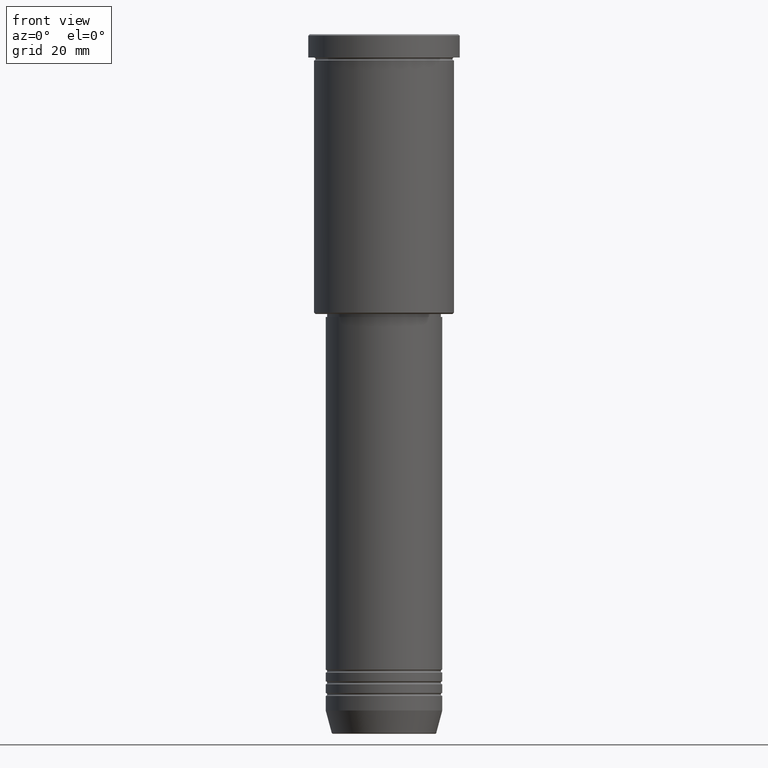
[diagram: clean part render]
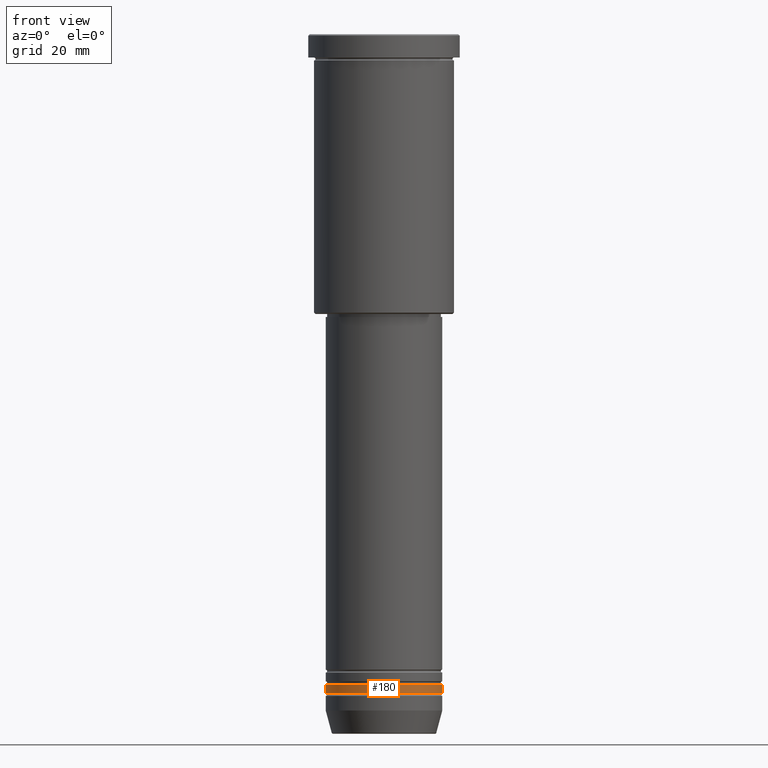
[diagram: same view with one face highlighted and labeled with its STEP entity id]
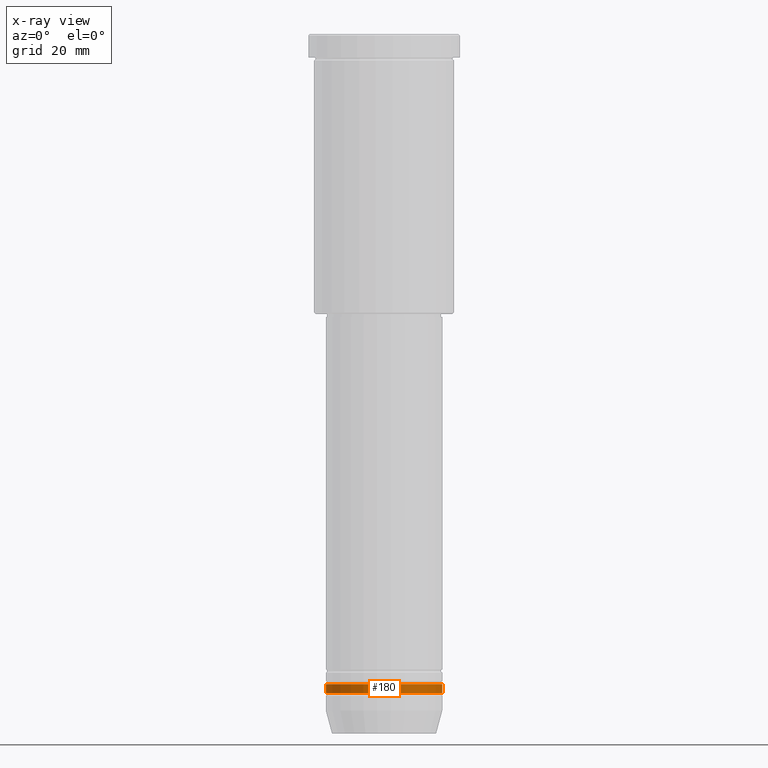
[diagram: x-ray of the same camera — body ghosted, the highlighted face saturated]
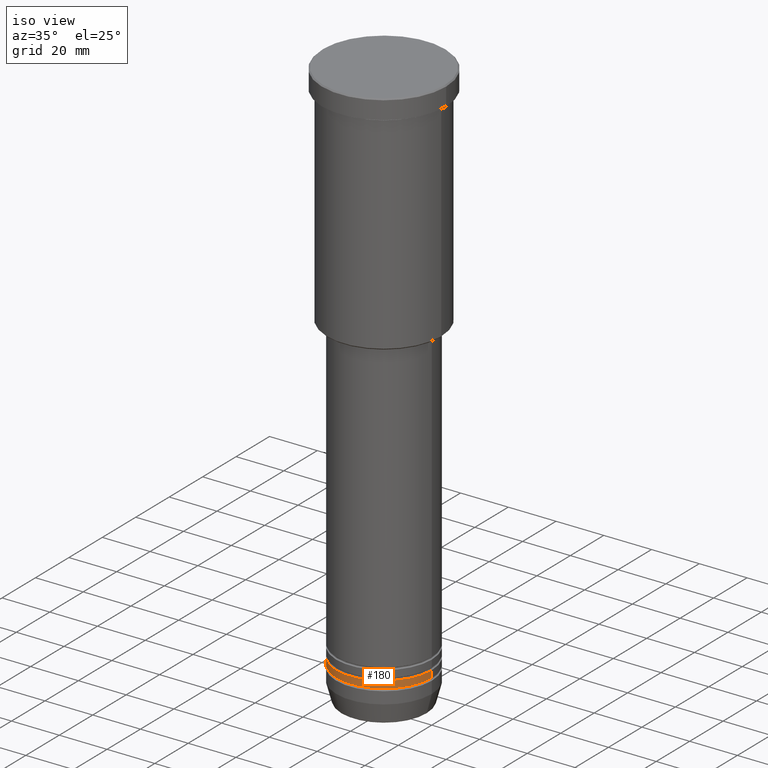
[diagram: same view with one face highlighted and labeled with its STEP entity id]
A machine part, front view. The second image highlights one B-rep face of the part: STEP entity #180.
The next image is the same camera in x-ray: the body ghosted, the highlighted face saturated — about 0% of this face is hidden behind the body in this view.
A second angle (iso view) of the same face is appended — the face is thin or edge-on in the first view.
In plain terms, the highlighted cylindrical surface (partial cylindrical patch) has radius 20 mm, axis along (-0, -0, 1).
Its self-contained STEP definition (entity closure, byte-faithful):
#37 = DIRECTION ( 'NONE',  ( -0.000000000000000000, -0.000000000000000000, 1.000000000000000000 ) ) ;
#58 = CARTESIAN_POINT ( 'NONE',  ( -20.00000000000000355, 2.449293598294706907E-15, -225.9999999999999716 ) ) ;
#59 = EDGE_CURVE ( 'NONE', #821, #355, #419, .T. ) ;
#133 = EDGE_CURVE ( 'NONE', #225, #821, #1123, .T. ) ;
#180 = ADVANCED_FACE ( 'NONE', ( #1034 ), #229, .T. ) ;
#187 = DIRECTION ( 'NONE',  ( -0.000000000000000000, -0.000000000000000000, 1.000000000000000000 ) ) ;
#225 = VERTEX_POINT ( 'NONE', #58 ) ;
#229 = CYLINDRICAL_SURFACE ( 'NONE', #487, 20.00000000000000355 ) ;
#232 = VECTOR ( 'NONE', #1155, 1000.000000000000000 ) ;
#251 = ORIENTED_EDGE ( 'NONE', *, *, #59, .F. ) ;
#314 = ORIENTED_EDGE ( 'NONE', *, *, #133, .F. ) ;
#325 = ORIENTED_EDGE ( 'NONE', *, *, #573, .T. ) ;
#331 = DIRECTION ( 'NONE',  ( 1.000000000000000000, 0.000000000000000000, 0.000000000000000000 ) ) ;
#355 = VERTEX_POINT ( 'NONE', #700 ) ;
#392 = ORIENTED_EDGE ( 'NONE', *, *, #1015, .T. ) ;
#419 = CIRCLE ( 'NONE', #705, 20.00000000000000000 ) ;
#432 = DIRECTION ( 'NONE',  ( -0.000000000000000000, -0.000000000000000000, 1.000000000000000000 ) ) ;
#455 = VECTOR ( 'NONE', #1114, 1000.000000000000000 ) ;
#476 = DIRECTION ( 'NONE',  ( 1.000000000000000000, 0.000000000000000000, 0.000000000000000000 ) ) ;
#487 = AXIS2_PLACEMENT_3D ( 'NONE', #859, #37, #783 ) ;
#499 = VERTEX_POINT ( 'NONE', #920 ) ;
#563 = CARTESIAN_POINT ( 'NONE',  ( 0.000000000000000000, 0.000000000000000000, -225.9999999999999716 ) ) ;
#567 = AXIS2_PLACEMENT_3D ( 'NONE', #563, #187, #476 ) ;
#573 = EDGE_CURVE ( 'NONE', #499, #355, #682, .T. ) ;
#679 = CARTESIAN_POINT ( 'NONE',  ( 0.000000000000000000, 0.000000000000000000, -223.0000000000000000 ) ) ;
#682 = LINE ( 'NONE', #760, #232 ) ;
#700 = CARTESIAN_POINT ( 'NONE',  ( 20.00000000000000000, 0.000000000000000000, -223.0000000000000000 ) ) ;
#705 = AXIS2_PLACEMENT_3D ( 'NONE', #679, #432, #331 ) ;
#750 = CARTESIAN_POINT ( 'NONE',  ( -20.00000000000000355, 2.449293598294706907E-15, 0.000000000000000000 ) ) ;
#760 = CARTESIAN_POINT ( 'NONE',  ( 20.00000000000000355, 0.000000000000000000, 0.000000000000000000 ) ) ;
#783 = DIRECTION ( 'NONE',  ( 1.000000000000000000, 0.000000000000000000, 0.000000000000000000 ) ) ;
#821 = VERTEX_POINT ( 'NONE', #1031 ) ;
#859 = CARTESIAN_POINT ( 'NONE',  ( 0.000000000000000000, 0.000000000000000000, 0.000000000000000000 ) ) ;
#920 = CARTESIAN_POINT ( 'NONE',  ( 20.00000000000000355, 0.000000000000000000, -225.9999999999999716 ) ) ;
#933 = CIRCLE ( 'NONE', #567, 20.00000000000000355 ) ;
#1010 = EDGE_LOOP ( 'NONE', ( #314, #392, #325, #251 ) ) ;
#1015 = EDGE_CURVE ( 'NONE', #225, #499, #933, .T. ) ;
#1031 = CARTESIAN_POINT ( 'NONE',  ( -20.00000000000000000, 2.449293598294706513E-15, -223.0000000000000000 ) ) ;
#1034 = FACE_OUTER_BOUND ( 'NONE', #1010, .T. ) ;
#1114 = DIRECTION ( 'NONE',  ( -0.000000000000000000, -0.000000000000000000, 1.000000000000000000 ) ) ;
#1123 = LINE ( 'NONE', #750, #455 ) ;
#1155 = DIRECTION ( 'NONE',  ( -0.000000000000000000, -0.000000000000000000, 1.000000000000000000 ) ) ;